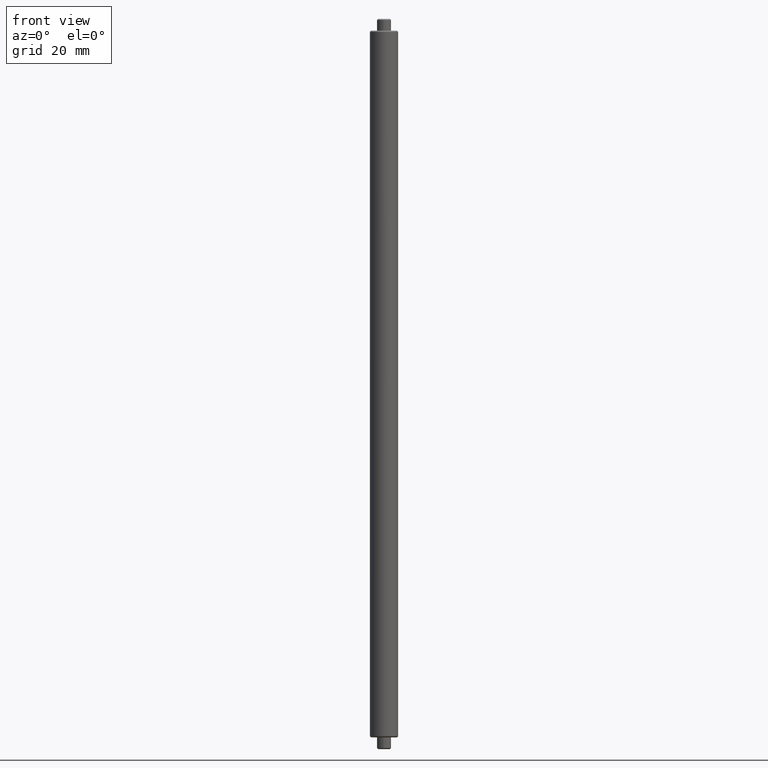
[diagram: clean part render]
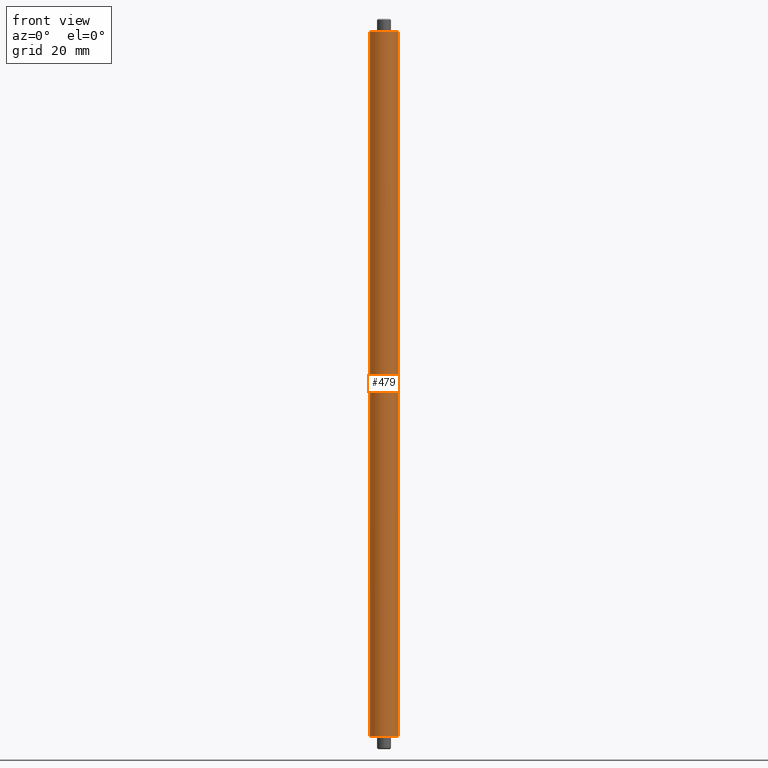
[diagram: same view with one face highlighted and labeled with its STEP entity id]
A machine part, front view. The second image highlights one B-rep face of the part: STEP entity #479.
In plain terms, the highlighted cylindrical surface (edge-blend (fillet) strip) has radius 3 mm, axis along (-0, -0, -1).
Its self-contained STEP definition (entity closure, byte-faithful):
#85 = DIRECTION ( 'NONE',  ( -0.000000000000000000, -0.000000000000000000, -1.000000000000000000 ) ) ;
#119 = DIRECTION ( 'NONE',  ( -0.000000000000000000, -0.000000000000000000, 1.000000000000000000 ) ) ;
#135 = LINE ( 'NONE', #255, #569 ) ;
#151 = VERTEX_POINT ( 'NONE', #1049 ) ;
#186 = CARTESIAN_POINT ( 'NONE',  ( -3.000000000000000444, 0.000000000000000000, 74.74999999999998579 ) ) ;
#250 = DIRECTION ( 'NONE',  ( 1.000000000000000000, 0.000000000000000000, 0.000000000000000000 ) ) ;
#255 = CARTESIAN_POINT ( 'NONE',  ( -3.000000000000000444, 0.000000000000000000, 75.00000000000000000 ) ) ;
#295 = CARTESIAN_POINT ( 'NONE',  ( 0.000000000000000000, 0.000000000000000000, 74.74999999999998579 ) ) ;
#362 = LINE ( 'NONE', #1236, #1106 ) ;
#403 = CYLINDRICAL_SURFACE ( 'NONE', #1540, 3.000000000000000444 ) ;
#430 = VERTEX_POINT ( 'NONE', #186 ) ;
#450 = VERTEX_POINT ( 'NONE', #1108 ) ;
#479 = ADVANCED_FACE ( 'NONE', ( #962 ), #403, .T. ) ;
#510 = VERTEX_POINT ( 'NONE', #669 ) ;
#522 = CARTESIAN_POINT ( 'NONE',  ( 0.000000000000000000, 0.000000000000000000, -74.75000000000002842 ) ) ;
#569 = VECTOR ( 'NONE', #1405, 1000.000000000000000 ) ;
#669 = CARTESIAN_POINT ( 'NONE',  ( 3.000000000000000444, 0.000000000000000000, -74.75000000000002842 ) ) ;
#688 = DIRECTION ( 'NONE',  ( 0.000000000000000000, 0.000000000000000000, -1.000000000000000000 ) ) ;
#889 = CIRCLE ( 'NONE', #1139, 3.000000000000000444 ) ;
#909 = ORIENTED_EDGE ( 'NONE', *, *, #1061, .T. ) ;
#952 = DIRECTION ( 'NONE',  ( 1.000000000000000000, 0.000000000000000000, 0.000000000000000000 ) ) ;
#962 = FACE_OUTER_BOUND ( 'NONE', #1545, .T. ) ;
#984 = DIRECTION ( 'NONE',  ( -0.000000000000000000, -0.000000000000000000, -1.000000000000000000 ) ) ;
#1049 = CARTESIAN_POINT ( 'NONE',  ( 3.000000000000000444, 3.673940397442060361E-16, 74.74999999999998579 ) ) ;
#1061 = EDGE_CURVE ( 'NONE', #450, #510, #1473, .T. ) ;
#1106 = VECTOR ( 'NONE', #85, 1000.000000000000000 ) ;
#1108 = CARTESIAN_POINT ( 'NONE',  ( -3.000000000000000444, 3.673940397442060361E-16, -74.75000000000002842 ) ) ;
#1116 = ORIENTED_EDGE ( 'NONE', *, *, #1577, .T. ) ;
#1139 = AXIS2_PLACEMENT_3D ( 'NONE', #295, #688, #952 ) ;
#1236 = CARTESIAN_POINT ( 'NONE',  ( 3.000000000000000444, 3.673940397442060361E-16, 75.00000000000000000 ) ) ;
#1258 = CARTESIAN_POINT ( 'NONE',  ( 0.000000000000000000, 0.000000000000000000, 75.00000000000000000 ) ) ;
#1281 = EDGE_CURVE ( 'NONE', #151, #510, #362, .T. ) ;
#1383 = ORIENTED_EDGE ( 'NONE', *, *, #1424, .T. ) ;
#1405 = DIRECTION ( 'NONE',  ( -0.000000000000000000, -0.000000000000000000, -1.000000000000000000 ) ) ;
#1418 = AXIS2_PLACEMENT_3D ( 'NONE', #522, #119, #250 ) ;
#1424 = EDGE_CURVE ( 'NONE', #151, #430, #889, .T. ) ;
#1473 = CIRCLE ( 'NONE', #1418, 3.000000000000000444 ) ;
#1518 = ORIENTED_EDGE ( 'NONE', *, *, #1281, .F. ) ;
#1540 = AXIS2_PLACEMENT_3D ( 'NONE', #1258, #984, #1652 ) ;
#1545 = EDGE_LOOP ( 'NONE', ( #1518, #1383, #1116, #909 ) ) ;
#1577 = EDGE_CURVE ( 'NONE', #430, #450, #135, .T. ) ;
#1652 = DIRECTION ( 'NONE',  ( -1.000000000000000000, 0.000000000000000000, 0.000000000000000000 ) ) ;